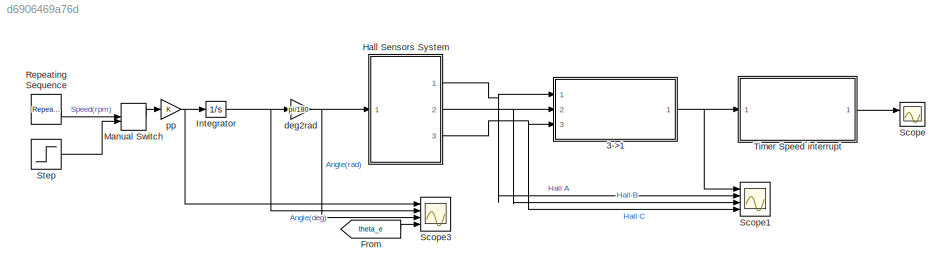
MODEL slx_d6906469a76d
KIND model
CONFIG AbsTol = auto
CONFIG EnableMultiTasking = off
CONFIG FixedStep = 0.00001
CONFIG MaxStep = auto
CONFIG MinStep = auto
CONFIG RelTol = 1e-3
CONFIG SampleTimeConstraint = Unconstrained
CONFIG Solver = ode5
CONFIG SolverName = ode5
CONFIG StartTime = 0.0
CONFIG StopTime = 61
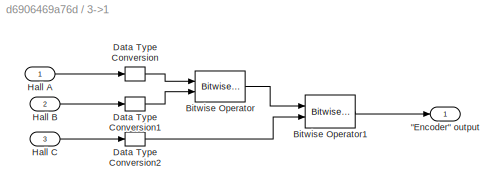
BLOCK [SubSystem] 3->1
  Ports = [3, 1]
  RequestExecContextInheritance = off
  Variant = off
BLOCK [Outport] 3->1/"Encoder" output
  IconDisplay = Port number
BLOCK [Reference] 3->1/Bitwise Operator  REF=simulink/Logic and Bit
Operations/Bitwise
Operator
  Ports = [2, 1]
  SourceBlock = simulink/Logic and Bit\nOperations/Bitwise\nOperator
  SourceProductBaseCode = SL
  SourceProductName = Simulink
  SourceType = Bitwise Operator
BLOCK [Reference] 3->1/Bitwise Operator1  REF=simulink/Logic and Bit
Operations/Bitwise
Operator
  Ports = [2, 1]
  SourceBlock = simulink/Logic and Bit\nOperations/Bitwise\nOperator
  SourceProductBaseCode = SL
  SourceProductName = Simulink
  SourceType = Bitwise Operator
BLOCK [DataTypeConversion] 3->1/Data Type Conversion
  OutDataTypeStr = boolean
  RndMeth = Floor
  SaturateOnIntegerOverflow = off
BLOCK [DataTypeConversion] 3->1/Data Type Conversion1
  OutDataTypeStr = boolean
  RndMeth = Floor
  SaturateOnIntegerOverflow = off
BLOCK [DataTypeConversion] 3->1/Data Type Conversion2
  OutDataTypeStr = boolean
  RndMeth = Floor
  SaturateOnIntegerOverflow = off
BLOCK [Inport] 3->1/Hall A
  IconDisplay = Port number
BLOCK [Inport] 3->1/Hall B
  IconDisplay = Port number
  Port = 2
BLOCK [Inport] 3->1/Hall C
  IconDisplay = Port number
  Port = 3
BLOCK [From] From
  GotoTag = theta_e
  TagVisibility = global
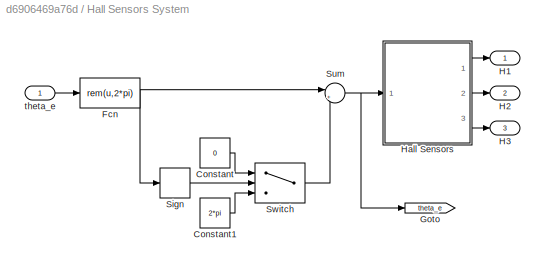
BLOCK [SubSystem] Hall Sensors System
  Ports = [1, 3]
  RequestExecContextInheritance = off
  Variant = off
BLOCK [Constant] Hall Sensors System/Constant
  Value = 0
BLOCK [Constant] Hall Sensors System/Constant1
  Value = 2*pi
BLOCK [Fcn] Hall Sensors System/Fcn
  Expr = rem(u,2*pi)
BLOCK [Goto] Hall Sensors System/Goto
  GotoTag = theta_e
  TagVisibility = global
BLOCK [Outport] Hall Sensors System/H1
  IconDisplay = Port number
BLOCK [Outport] Hall Sensors System/H2
  IconDisplay = Port number
  Port = 2
BLOCK [Outport] Hall Sensors System/H3
  IconDisplay = Port number
  Port = 3
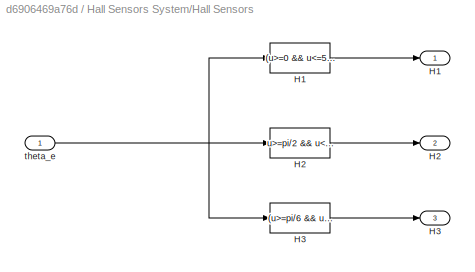
BLOCK [SubSystem] Hall Sensors System/Hall Sensors
  Ports = [1, 3]
  RequestExecContextInheritance = off
  Variant = off
BLOCK [Fcn] Hall Sensors System/Hall Sensors/H1
  Expr = (u>=0 && u<=5*pi/6) || (u>=11*pi/6 && u<=2*pi)
BLOCK [Outport] Hall Sensors System/Hall Sensors/H1 
  IconDisplay = Port number
BLOCK [Fcn] Hall Sensors System/Hall Sensors/H2
  Expr = u>=pi/2 && u<=3*pi/2
BLOCK [Outport] Hall Sensors System/Hall Sensors/H2 
  IconDisplay = Port number
  Port = 2
BLOCK [Fcn] Hall Sensors System/Hall Sensors/H3
  Expr = (u>=pi/6 && u<=7*pi/6)
BLOCK [Outport] Hall Sensors System/Hall Sensors/H3 
  IconDisplay = Port number
  Port = 3
BLOCK [Inport] Hall Sensors System/Hall Sensors/theta_e
  IconDisplay = Port number
BLOCK [Signum] Hall Sensors System/Sign
BLOCK [Sum] Hall Sensors System/Sum
  IconShape = round
  InputSameDT = off
  Inputs = |++
  OutDataTypeStr = Inherit: Inherit via internal rule
  Ports = [2, 1]
  SaturateOnIntegerOverflow = off
BLOCK [Switch] Hall Sensors System/Switch
  InputSameDT = off
  SaturateOnIntegerOverflow = off
BLOCK [Inport] Hall Sensors System/theta_e
  IconDisplay = Port number
BLOCK [Integrator] Integrator
  Ports = [1, 1]
BLOCK [ManualSwitch] Manual Switch
  CurrentSetting = 0
BLOCK [Reference] Repeating Sequence  REF=simulink/Sources/Repeating
Sequence
  Ports = [0, 1]
  SourceBlock = simulink/Sources/Repeating\nSequence
  SourceProductBaseCode = SL
  SourceProductName = Simulink
  SourceType = Repeating table
BLOCK [Scope] Scope
  NumInputPorts = 2
  Ports = [2]
  ScopeSpecificationString = Simulink.scopes.TimeScopeBlockCfg('CurrentConfiguration', extmgr.ConfigurationSet(extmgr.Configuration('Core','General UI',true),extmgr.Configuration('Core','Source UI',true),extmgr.Configuration('Sources','WiredSimulink',true),extmgr.Configuration('Visuals','Time Domain',true,'SerializedDisplays',{struct('MinYLimReal','-5.68182','MaxYLimReal','51.13636','YLabelReal','','MinYLimMag','0.00000','Max...<+1428ch>
BLOCK [Scope] Scope1
  NumInputPorts = 4
  Ports = [4]
  ScopeSpecificationString = Simulink.scopes.TimeScopeBlockCfg('CurrentConfiguration', extmgr.ConfigurationSet(extmgr.Configuration('Core','General UI',true),extmgr.Configuration('Core','Source UI',true),extmgr.Configuration('Sources','WiredSimulink',true,'DataLoggingVariableName','ScopeData1'),extmgr.Configuration('Visuals','Time Domain',true,'SerializedDisplays',{struct('MinYLimReal','-0.125','MaxYLimReal','1.125','YLabelRe...<+3512ch>
BLOCK [Scope] Scope3
  NumInputPorts = 4
  Ports = [4]
  ScopeSpecificationString = Simulink.scopes.TimeScopeBlockCfg('CurrentConfiguration', extmgr.ConfigurationSet(extmgr.Configuration('Core','General UI',true),extmgr.Configuration('Core','Source UI',true),extmgr.Configuration('Sources','WiredSimulink',true,'DataLoggingVariableName','ScopeData3'),extmgr.Configuration('Visuals','Time Domain',true,'SerializedDisplays',{struct('MinYLimReal','-31.25','MaxYLimReal','281.25','YLabelR...<+3534ch>
BLOCK [Step] Step
  After = 250
  Time = 0.1
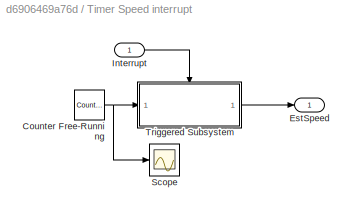
BLOCK [SubSystem] Timer Speed interrupt
  Ports = [1, 1]
  RequestExecContextInheritance = off
  Variant = off
BLOCK [Reference] Timer Speed interrupt/Counter Free-Running  REF=simulink/Sources/Counter
Free-Running
  Ports = [0, 1]
  SourceBlock = simulink/Sources/Counter\nFree-Running
  SourceProductBaseCode = SL
  SourceProductName = Simulink
  SourceType = Counter Free-Running
BLOCK [Outport] Timer Speed interrupt/EstSpeed
  IconDisplay = Port number
BLOCK [Inport] Timer Speed interrupt/Interrupt
  IconDisplay = Port number
BLOCK [Scope] Timer Speed interrupt/Scope
  NumInputPorts = 1
  Ports = [1]
  ScopeSpecificationString = Simulink.scopes.TimeScopeBlockCfg('CurrentConfiguration', extmgr.ConfigurationSet(extmgr.Configuration('Core','General UI',true),extmgr.Configuration('Core','Source UI',true),extmgr.Configuration('Sources','WiredSimulink',true,'DataLoggingVariableName','ScopeData1'),extmgr.Configuration('Visuals','Time Domain',true,'SerializedDisplays',{struct('MinYLimReal','-8191.875','MaxYLimReal','73726.875','Y...<+1464ch>
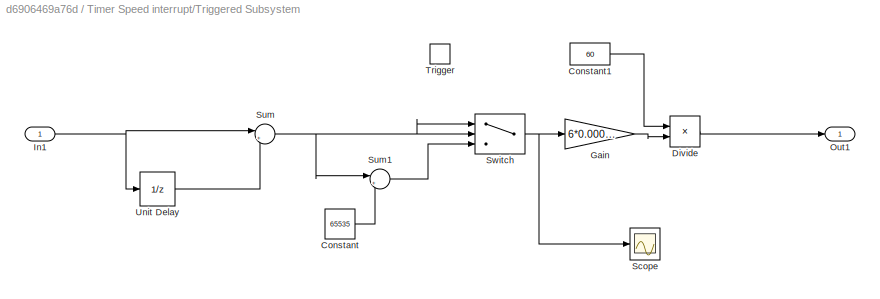
BLOCK [SubSystem] Timer Speed interrupt/Triggered Subsystem
  Ports = [1, 1, 0, 1]
  RequestExecContextInheritance = off
  TreatAsAtomicUnit = on
  Variant = off
BLOCK [Constant] Timer Speed interrupt/Triggered Subsystem/Constant
  Value = 65535
BLOCK [Constant] Timer Speed interrupt/Triggered Subsystem/Constant1
  Value = 60
BLOCK [Product] Timer Speed interrupt/Triggered Subsystem/Divide
  InputSameDT = off
  Inputs = */
  OutDataTypeStr = Inherit: Inherit via internal rule
  Ports = [2, 1]
  RndMeth = Floor
  SaturateOnIntegerOverflow = off
BLOCK [Gain] Timer Speed interrupt/Triggered Subsystem/Gain
  Gain = 6*0.00001
  OutDataTypeStr = Inherit: Inherit via internal rule
  ParamDataTypeStr = Inherit: Inherit via internal rule
  SaturateOnIntegerOverflow = off
BLOCK [Inport] Timer Speed interrupt/Triggered Subsystem/In1
  IconDisplay = Port number
BLOCK [Outport] Timer Speed interrupt/Triggered Subsystem/Out1
  IconDisplay = Port number
BLOCK [Scope] Timer Speed interrupt/Triggered Subsystem/Scope
  NumInputPorts = 1
  Ports = [1]
  ScopeSpecificationString = Simulink.scopes.TimeScopeBlockCfg('CurrentConfiguration', extmgr.ConfigurationSet(extmgr.Configuration('Core','General UI',true),extmgr.Configuration('Core','Source UI',true),extmgr.Configuration('Sources','WiredSimulink',true,'DataLoggingVariableName','ScopeData2'),extmgr.Configuration('Visuals','Time Domain',true,'SerializedDisplays',{struct('MinYLimReal','23996.92286','MaxYLimReal','24002.01355...<+1466ch>
BLOCK [Sum] Timer Speed interrupt/Triggered Subsystem/Sum
  IconShape = round
  InputSameDT = off
  Inputs = |+-
  OutDataTypeStr = Inherit: Inherit via internal rule
  Ports = [2, 1]
  SaturateOnIntegerOverflow = off
BLOCK [Sum] Timer Speed interrupt/Triggered Subsystem/Sum1
  IconShape = round
  InputSameDT = off
  Inputs = |++
  OutDataTypeStr = Inherit: Inherit via internal rule
  Ports = [2, 1]
  SaturateOnIntegerOverflow = off
BLOCK [Switch] Timer Speed interrupt/Triggered Subsystem/Switch
  Criteria = u2 > Threshold
  InputSameDT = off
  SaturateOnIntegerOverflow = off
BLOCK [TriggerPort] Timer Speed interrupt/Triggered Subsystem/Trigger
  Ports = []
  StatesWhenEnabling = held
  TriggerType = either
  VariantControl = Variant
BLOCK [UnitDelay] Timer Speed interrupt/Triggered Subsystem/Unit Delay
  InputProcessing = Elements as channels (sample based)
  SampleTime = -1
BLOCK [Gain] deg2rad
  Gain = pi/180
  OutDataTypeStr = Inherit: Inherit via internal rule
  ParamDataTypeStr = Inherit: Inherit via internal rule
  SaturateOnIntegerOverflow = off
BLOCK [Gain] pp
  OutDataTypeStr = Inherit: Inherit via internal rule
  ParamDataTypeStr = Inherit: Inherit via internal rule
  SaturateOnIntegerOverflow = off
LINE 3->1/Bitwise Operator1:1 -> 3->1/"Encoder" output:1
LINE 3->1/Bitwise Operator:1 -> 3->1/Bitwise Operator1:1
LINE 3->1/Data Type Conversion1:1 -> 3->1/Bitwise Operator:2
LINE 3->1/Data Type Conversion2:1 -> 3->1/Bitwise Operator1:2
LINE 3->1/Data Type Conversion:1 -> 3->1/Bitwise Operator:1
LINE 3->1/Hall A:1 -> 3->1/Data Type Conversion:1
LINE 3->1/Hall B:1 -> 3->1/Data Type Conversion1:1
LINE 3->1/Hall C:1 -> 3->1/Data Type Conversion2:1
NET 3->1:1 -> Scope1:1, Timer Speed interrupt:1
LINE From:1 -> Scope3:4
LINE Hall Sensors System/Constant1:1 -> Hall Sensors System/Switch:3
LINE Hall Sensors System/Constant:1 -> Hall Sensors System/Switch:1
NET Hall Sensors System/Fcn:1 -> Hall Sensors System/Sign:1, Hall Sensors System/Sum:1
LINE Hall Sensors System/Hall Sensors/H1:1 -> Hall Sensors System/Hall Sensors/H1 :1
LINE Hall Sensors System/Hall Sensors/H2:1 -> Hall Sensors System/Hall Sensors/H2 :1
LINE Hall Sensors System/Hall Sensors/H3:1 -> Hall Sensors System/Hall Sensors/H3 :1
NET Hall Sensors System/Hall Sensors/theta_e:1 -> Hall Sensors System/Hall Sensors/H1:1, Hall Sensors System/Hall Sensors/H2:1, Hall Sensors System/Hall Sensors/H3:1
LINE Hall Sensors System/Hall Sensors:1 -> Hall Sensors System/H1:1
LINE Hall Sensors System/Hall Sensors:2 -> Hall Sensors System/H2:1
LINE Hall Sensors System/Hall Sensors:3 -> Hall Sensors System/H3:1
LINE Hall Sensors System/Sign:1 -> Hall Sensors System/Switch:2
NET Hall Sensors System/Sum:1 -> Hall Sensors System/Goto:1, Hall Sensors System/Hall Sensors:1
LINE Hall Sensors System/Switch:1 -> Hall Sensors System/Sum:2
LINE Hall Sensors System/theta_e:1 -> Hall Sensors System/Fcn:1
NET Hall Sensors System:1 -> 3->1:1, Scope1:2
NET Hall Sensors System:2 -> 3->1:2, Scope1:3
NET Hall Sensors System:3 -> 3->1:3, Scope1:4
NET Integrator:1 -> Scope3:2, deg2rad:1
LINE Manual Switch:1 -> pp:1
LINE Repeating Sequence:1 -> Manual Switch:1
LINE Step:1 -> Manual Switch:2
NET Timer Speed interrupt/Counter Free-Running:1 -> Timer Speed interrupt/Scope:1, Timer Speed interrupt/Triggered Subsystem:1
LINE Timer Speed interrupt/Interrupt:1 -> Timer Speed interrupt/Triggered Subsystem:trigger
LINE Timer Speed interrupt/Triggered Subsystem/Constant1:1 -> Timer Speed interrupt/Triggered Subsystem/Divide:1
LINE Timer Speed interrupt/Triggered Subsystem/Constant:1 -> Timer Speed interrupt/Triggered Subsystem/Sum1:2
LINE Timer Speed interrupt/Triggered Subsystem/Divide:1 -> Timer Speed interrupt/Triggered Subsystem/Out1:1
LINE Timer Speed interrupt/Triggered Subsystem/Gain:1 -> Timer Speed interrupt/Triggered Subsystem/Divide:2
NET Timer Speed interrupt/Triggered Subsystem/In1:1 -> Timer Speed interrupt/Triggered Subsystem/Sum:1, Timer Speed interrupt/Triggered Subsystem/Unit Delay:1
LINE Timer Speed interrupt/Triggered Subsystem/Sum1:1 -> Timer Speed interrupt/Triggered Subsystem/Switch:3
NET Timer Speed interrupt/Triggered Subsystem/Sum:1 -> Timer Speed interrupt/Triggered Subsystem/Sum1:1, Timer Speed interrupt/Triggered Subsystem/Switch:1, Timer Speed interrupt/Triggered Subsystem/Switch:2
NET Timer Speed interrupt/Triggered Subsystem/Switch:1 -> Timer Speed interrupt/Triggered Subsystem/Gain:1, Timer Speed interrupt/Triggered Subsystem/Scope:1
LINE Timer Speed interrupt/Triggered Subsystem/Unit Delay:1 -> Timer Speed interrupt/Triggered Subsystem/Sum:2
LINE Timer Speed interrupt/Triggered Subsystem:1 -> Timer Speed interrupt/EstSpeed:1
LINE Timer Speed interrupt:1 -> Scope:1
NET deg2rad:1 -> Hall Sensors System:1, Scope3:3
NET pp:1 -> Integrator:1, Scope3:1
note: NET lines group one-source signal fan-out (src -> all destinations, sorted); 1:1 wires keep LINE
